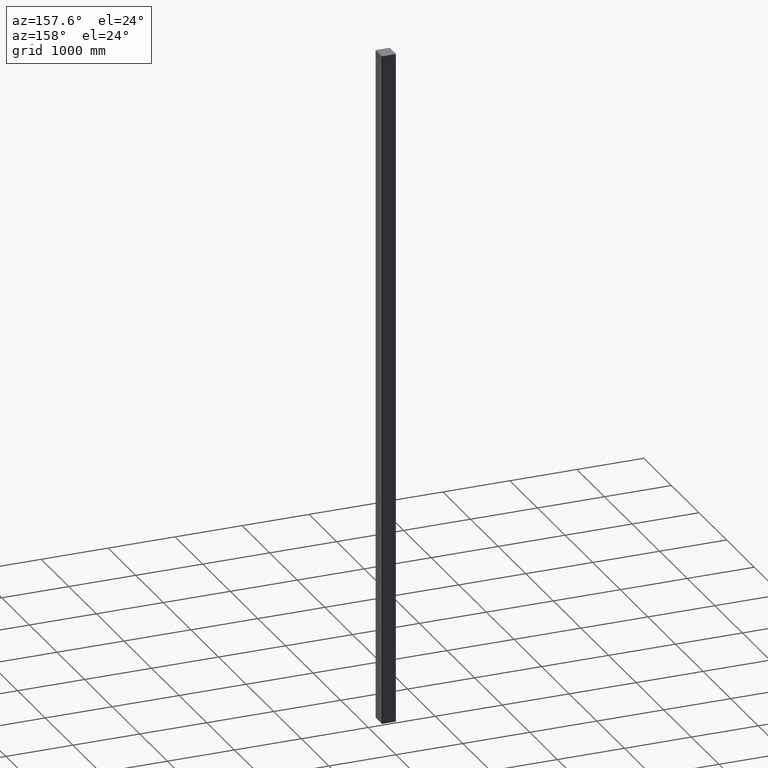
[diagram: clean part render]
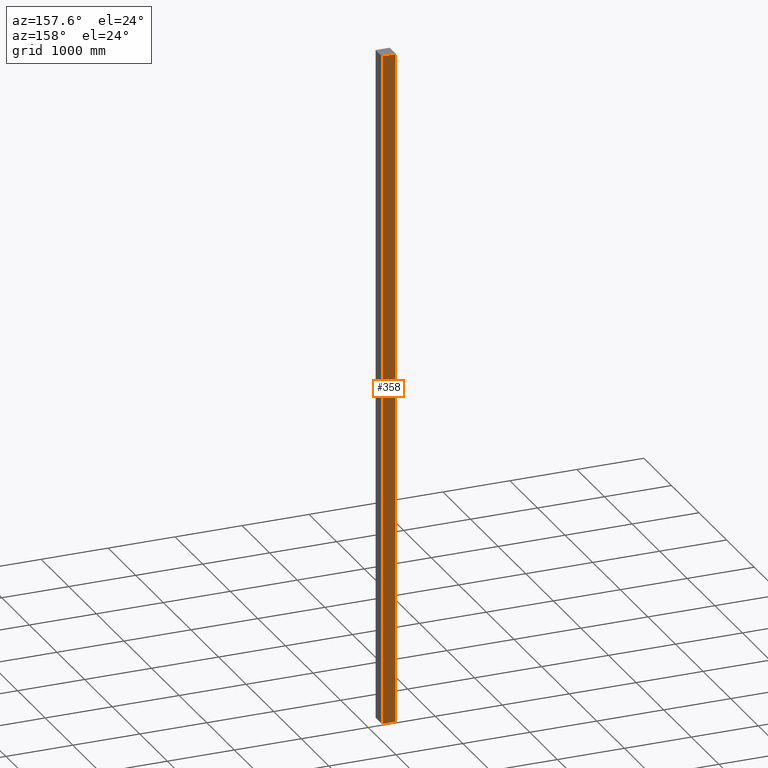
[diagram: same view with one face highlighted and labeled with its STEP entity id]
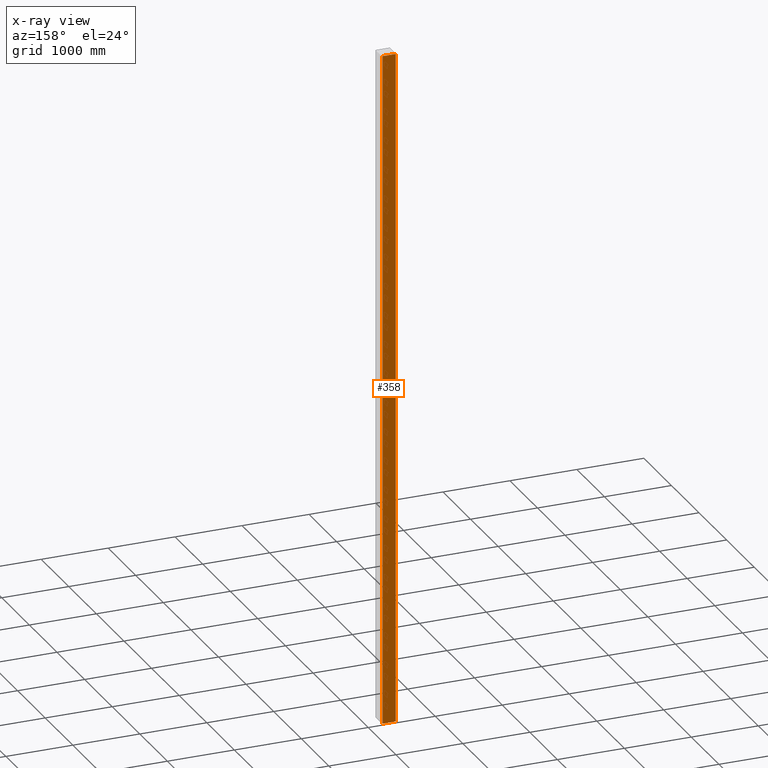
[diagram: x-ray of the same camera — body ghosted, the highlighted face saturated]
A machine part, auxiliary view. The second image highlights one B-rep face of the part: STEP entity #358.
The next image is the same camera in x-ray: the body ghosted, the highlighted face saturated — about 0% of this face is hidden behind the body in this view.
In plain terms, the highlighted planar face has unit normal (0, 1, 0).
Its self-contained STEP definition (entity closure, byte-faithful):
#300=CARTESIAN_POINT('',(6708.0208871467576,6276.4066631202131,-10000.0));
#301=VERTEX_POINT('',#300);
#310=CARTESIAN_POINT('',(6708.0208871467576,6276.4066631201767,90.0));
#311=VERTEX_POINT('',#310);
#319=CARTESIAN_POINT('',(6708.0208871467576,6276.4066631202131,90.0));
#320=DIRECTION('',(0.0,0.0,-1.0));
#321=VECTOR('',#320,10090.0);
#322=LINE('',#319,#321);
#323=EDGE_CURVE('',#311,#301,#322,.T.);
#328=CARTESIAN_POINT('',(6804.0208871467603,6276.406663120214,0.0));
#329=DIRECTION('',(0.0,1.0,0.0));
#330=DIRECTION('',(0.0,0.0,1.0));
#331=AXIS2_PLACEMENT_3D('',#328,#329,#330);
#332=PLANE('',#331);
#333=CARTESIAN_POINT('',(6900.0208871467694,6276.4066631202222,-10000.0));
#334=VERTEX_POINT('',#333);
#335=CARTESIAN_POINT('',(6900.0208871467694,6276.4066631202568,90.0));
#336=VERTEX_POINT('',#335);
#337=CARTESIAN_POINT('',(6900.0208871467694,6276.4066631202222,-10000.0));
#338=DIRECTION('',(0.0,0.0,1.0));
#339=VECTOR('',#338,10090.0);
#340=LINE('',#337,#339);
#341=EDGE_CURVE('',#334,#336,#340,.T.);
#342=ORIENTED_EDGE('',*,*,#341,.F.);
#343=CARTESIAN_POINT('',(6900.0208871467694,6276.4066631202168,-10000.0));
#344=DIRECTION('',(-1.0,0.0,0.0));
#345=VECTOR('',#344,192.00000000001182);
#346=LINE('',#343,#345);
#347=EDGE_CURVE('',#334,#301,#346,.T.);
#348=ORIENTED_EDGE('',*,*,#347,.T.);
#349=ORIENTED_EDGE('',*,*,#323,.F.);
#350=CARTESIAN_POINT('',(6708.0208871467576,6276.4066631201767,90.0));
#351=DIRECTION('',(1.0,4.168517E-013,0.0));
#352=VECTOR('',#351,192.00000000001182);
#353=LINE('',#350,#352);
#354=EDGE_CURVE('',#311,#336,#353,.T.);
#355=ORIENTED_EDGE('',*,*,#354,.T.);
#356=EDGE_LOOP('',(#342,#348,#349,#355));
#357=FACE_OUTER_BOUND('',#356,.T.);
#358=ADVANCED_FACE('',(#357),#332,.T.);